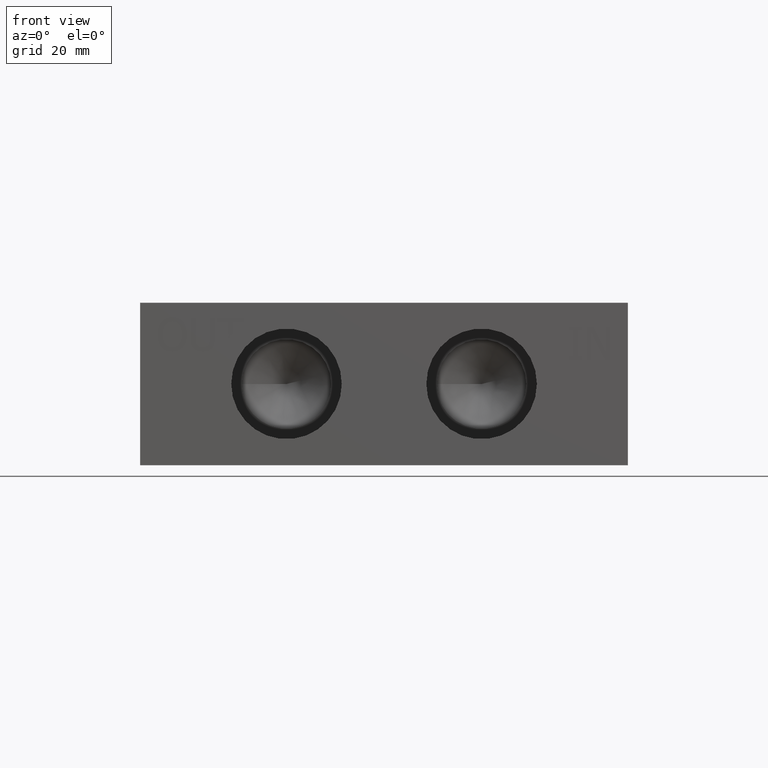
[diagram: clean part render]
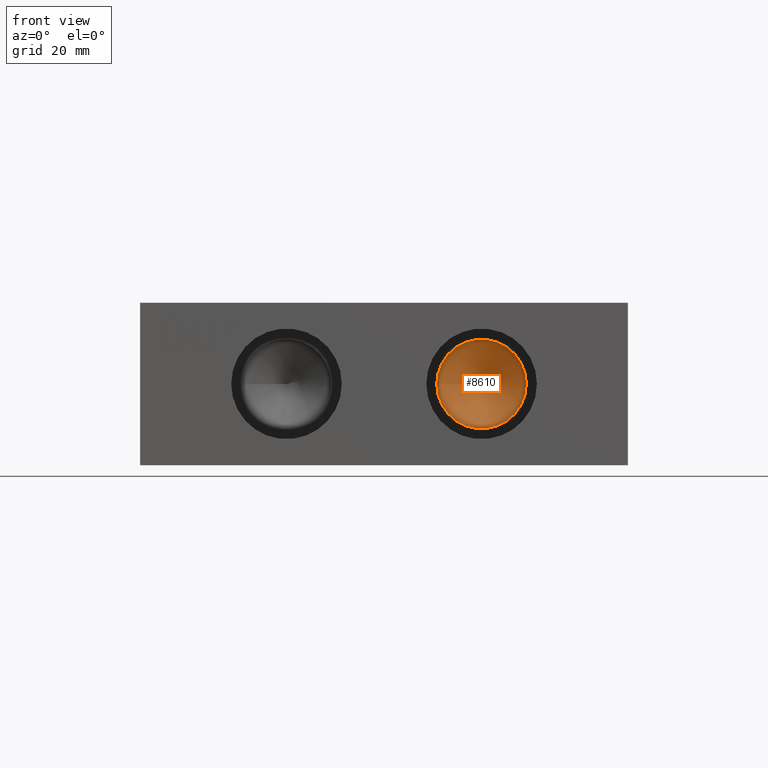
[diagram: same view with one face highlighted and labeled with its STEP entity id]
A machine part, front view. The second image highlights one B-rep face of the part: STEP entity #8610.
In plain terms, the highlighted conical surface has half-angle 60 deg.
Its self-contained STEP definition (entity closure, byte-faithful):
#15=CONICAL_SURFACE('',#8942,4.3688,1.0471975511966);
#63=CIRCLE('',#8943,8.7376);
#64=CIRCLE('',#8944,8.7376);
#836=FACE_OUTER_BOUND('',#1311,.T.);
#1311=EDGE_LOOP('',(#7517,#7518,#7519,#7520));
#2175=LINE('',#14669,#3017);
#3017=VECTOR('',#10413,4.3688);
#4069=VERTEX_POINT('',#14665);
#4070=VERTEX_POINT('',#14666);
#4071=VERTEX_POINT('',#14668);
#5239=EDGE_CURVE('',#4069,#4070,#63,.T.);
#5240=EDGE_CURVE('',#4070,#4071,#2175,.T.);
#5241=EDGE_CURVE('',#4070,#4069,#64,.T.);
#7517=ORIENTED_EDGE('',*,*,#5239,.T.);
#7518=ORIENTED_EDGE('',*,*,#5240,.T.);
#7519=ORIENTED_EDGE('',*,*,#5240,.F.);
#7520=ORIENTED_EDGE('',*,*,#5241,.T.);
#8610=ADVANCED_FACE('',(#836),#15,.F.);
#8942=AXIS2_PLACEMENT_3D('',#14664,#10409,#10410);
#8943=AXIS2_PLACEMENT_3D('',#14667,#10411,#10412);
#8944=AXIS2_PLACEMENT_3D('',#14670,#10414,#10415);
#10409=DIRECTION('center_axis',(0.,-1.,0.));
#10410=DIRECTION('ref_axis',(1.,0.,0.));
#10411=DIRECTION('center_axis',(0.,-1.,0.));
#10412=DIRECTION('ref_axis',(1.,0.,0.));
#10413=DIRECTION('',(0.866025403784439,0.5,1.06057523872491E-16));
#10414=DIRECTION('center_axis',(0.,-1.,0.));
#10415=DIRECTION('ref_axis',(1.,0.,0.));
#14664=CARTESIAN_POINT('Origin',(66.675,18.3937978560356,15.875));
#14665=CARTESIAN_POINT('',(75.4126,15.87147,15.875));
#14666=CARTESIAN_POINT('',(57.9374,15.87147,15.875));
#14667=CARTESIAN_POINT('Origin',(66.675,15.87147,15.875));
#14668=CARTESIAN_POINT('',(66.675,20.9161257120713,15.875));
#14669=CARTESIAN_POINT('',(62.3062,18.3937978560356,15.875));
#14670=CARTESIAN_POINT('Origin',(66.675,15.87147,15.875));